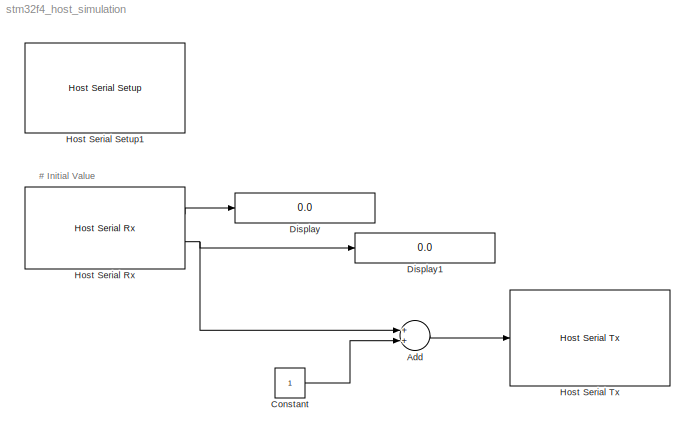
MODEL stm32f4_host_simulation
KIND model
CONFIG PreLoadFcn = waijung.modelPreload; % Required for working with Waijung Blockset. Do not remove.
BLOCK [Sum] Add
  InputSameDT = off
  OutDataType = fixdt(1, 16)
  OutDataTypeMode = Inherit via internal rule
  OutDataTypeStr = Inherit: Inherit via internal rule
  OutScaling = 2^-10
  Ports = [2, 1]
  SaturateOnIntegerOverflow = off
BLOCK [Constant] Constant
  OutDataType = fixdt(1, 16)
  OutDataTypeMode = uint32
  OutDataTypeStr = uint32
  OutScaling = 2^0
BLOCK [Display] Display
  Decimation = 1
  Format = long
  Lockdown = off
  Ports = [1]
BLOCK [Display] Display1
  Decimation = 1
  Format = long
  Lockdown = off
  Ports = [1]
BLOCK [Reference] Host Serial Rx  REF=amg_usbconverter_n_connect_lib/Host Serial Rx
  Ports = [0, 2]
  SourceBlock = amg_usbconverter_n_connect_lib/Host Serial Rx
  SourceType = amg_usbconverter_n_connect
  asciiformat = '%d,%f'
  autoport = 'COM4'
  baudrate = 5000000
  binheader = '7E 7E'
  binterminator = '03 03'
  blockid = HostSerialRx
  cinputportlabel = 0
  compat = 0
  conf = rx
  coutputportlabel = A
  databits = 8
  enablecustomportlabel = off
  enableinitialvalues = on
  flowcontrol = None
  initialvalues = [0 0]
  inputportlabel = {}
  inputporttype = []
  inputportwidth = []
  optionstring = []
  outputportlabel = {'single','uint32'}
  outputporttype = [1 7]
  outputportwidth = [1 1]
  packetmode = Binary
  parity = None
  port = <auto>
  portpinstr = 0
  porttype_double = 0
  porttype_int16 = 0
  porttype_int32 = 0
  porttype_int8 = 0
  porttype_single = 1
  porttype_uint16 = 0
  porttype_uint32 = 1
  porttype_uint8 = 0
  rx_asciiterminator = CRLF (0x0D 0x0A - \"<path>")
  sampletime = inf
  stopbit = 1
  timeout = 5
  transfer = Blocking
  tx_asciiterminator = CRLF (0x0D 0x0A - \"<path>")
BLOCK [Reference] Host Serial Setup1  REF=amg_usbconverter_n_connect_lib/Host Serial Setup
  Ports = []
  SourceBlock = amg_usbconverter_n_connect_lib/Host Serial Setup
  SourceType = amg_usbconverter_n_connect
  asciiformat = '%d %u %x'
  autoport = 'COM4'
  baudrate = 5000000
  binheader = '7E 7E'
  binterminator = '03 03'
  blockid = HostSerialSetup1
  cinputportlabel = 0
  compat = 0
  conf = setup
  coutputportlabel = A
  databits = 8
  enablecustomportlabel = off
  flowcontrol = None
  initialvalues = []
  inputportlabel = {}
  inputporttype = []
  inputportwidth = []
  optionstring = []
  outputportlabel = {}
  outputporttype = []
  outputportwidth = []
  packetmode = Binary
  parity = None
  port = <auto>
  portpinstr = 0
  porttype_double = 0
  porttype_int16 = 0
  porttype_int32 = 0
  porttype_int8 = 0
  porttype_single = 1
  porttype_uint16 = 0
  porttype_uint32 = 2
  porttype_uint8 = 0
  rx_asciiterminator = CRLF (0x0D 0x0A - \"<path>")
  sampletime = inf
  stopbit = 1
  timeout = 2
  transfer = Blocking
  tx_asciiterminator = CRLF (0x0D 0x0A - \"<path>")
BLOCK [Reference] Host Serial Tx  REF=amg_usbconverter_n_connect_lib/Host Serial Tx
  Ports = [1]
  SourceBlock = amg_usbconverter_n_connect_lib/Host Serial Tx
  SourceType = amg_usbconverter_n_connect
  asciiformat = '%d,%f'
  autoport = 'COM4'
  baudrate = 5000000
  binheader = '7E 7E'
  binterminator = '03 03'
  blockid = HostSerialTx
  cinputportlabel = 0
  compat = 0
  conf = tx
  coutputportlabel = A
  databits = 8
  enablecustomportlabel = off
  flowcontrol = None
  initialvalues = []
  inputportlabel = {'uint32'}
  inputporttype = [7]
  inputportwidth = [1]
  optionstring = []
  outputportlabel = {}
  outputporttype = []
  outputportwidth = []
  packetmode = Binary
  parity = None
  port = <auto>
  portpinstr = 0
  porttype_double = 0
  porttype_int16 = 0
  porttype_int32 = 0
  porttype_int8 = 0
  porttype_single = 0
  porttype_uint16 = 0
  porttype_uint32 = 1
  porttype_uint8 = 0
  rx_asciiterminator = CRLF (0x0D 0x0A - \"<path>")
  sampletime = inf
  stopbit = 1
  timeout = 2
  transfer = Blocking
  tx_asciiterminator = CRLF (0x0D 0x0A - \"<path>")
ANNOTATION (root): # Initial Value
LINE Add:1 -> Host Serial Tx:1
LINE Constant:1 -> Add:2
LINE Host Serial Rx:1 -> Display:1
NET Host Serial Rx:2 -> Add:1, Display1:1
note: NET lines group one-source signal fan-out (src -> all destinations, sorted); 1:1 wires keep LINE
note: 6 file-system paths scrubbed to <path> (not preserved elsewhere — flat text is the only slx artifact)
